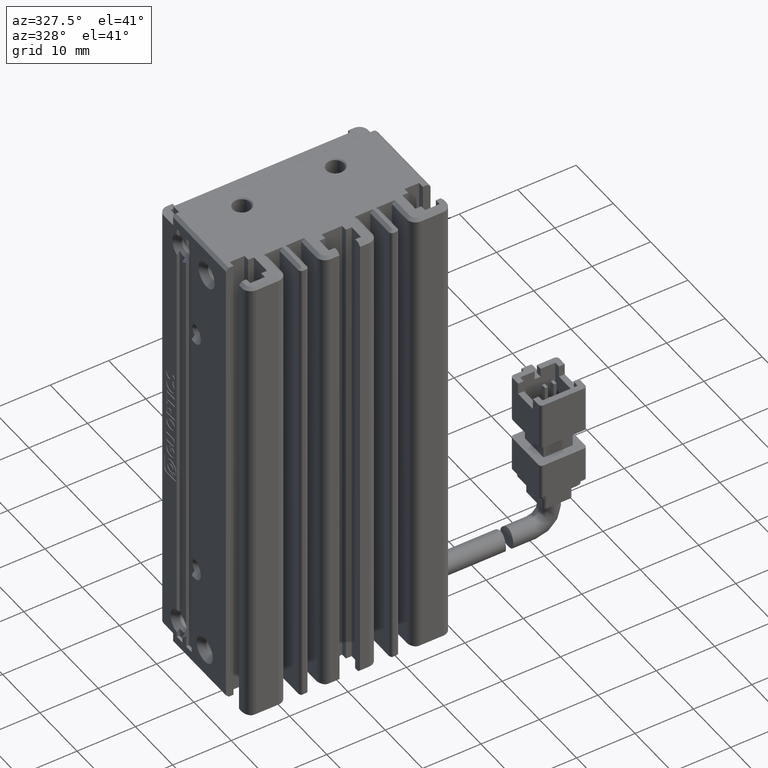
[diagram: clean part render]
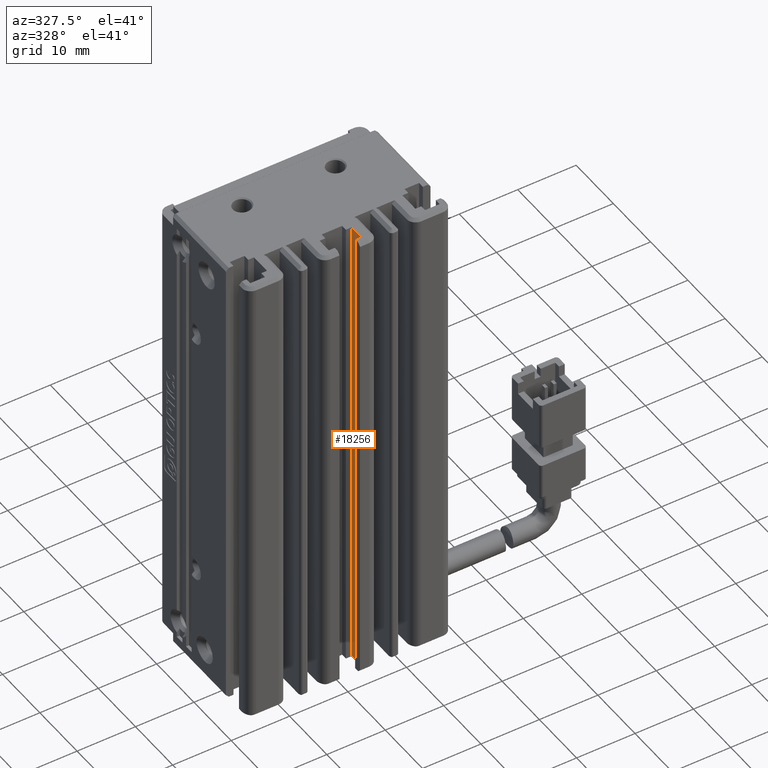
[diagram: same view with one face highlighted and labeled with its STEP entity id]
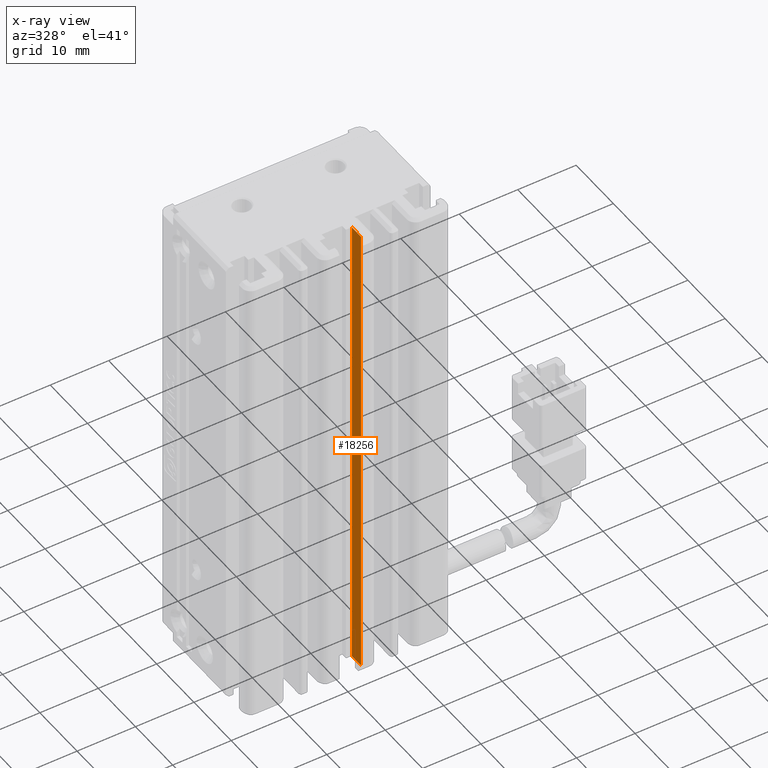
[diagram: x-ray of the same camera — body ghosted, the highlighted face saturated]
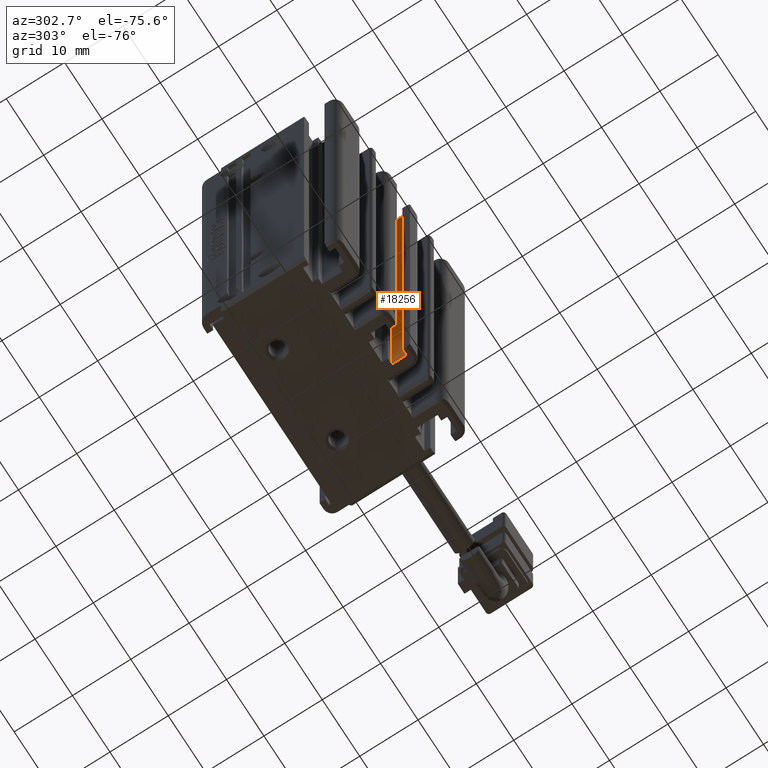
[diagram: same view with one face highlighted and labeled with its STEP entity id]
A machine part, auxiliary view. The second image highlights one B-rep face of the part: STEP entity #18256.
The next image is the same camera in x-ray: the body ghosted, the highlighted face saturated — about 0% of this face is hidden behind the body in this view.
A second angle (auxiliary view) of the same face is appended — the face is thin or edge-on in the first view.
In plain terms, the highlighted planar face has unit normal (-1, 0, 0).
Its self-contained STEP definition (entity closure, byte-faithful):
#388 = ORIENTED_EDGE ( 'NONE', *, *, #30338, .T. ) ;
#711 = EDGE_CURVE ( 'NONE', #32231, #16878, #1907, .T. ) ;
#1571 = VECTOR ( 'NONE', #5401, 1000.000000000000000 ) ;
#1907 = LINE ( 'NONE', #15274, #17039 ) ;
#3527 = DIRECTION ( 'NONE',  ( 0.0000000000000000000, 0.0000000000000000000, 1.000000000000000000 ) ) ;
#4177 = ORIENTED_EDGE ( 'NONE', *, *, #7888, .T. ) ;
#4225 = CARTESIAN_POINT ( 'NONE',  ( 43.67537974683542500, 14.79073232304837000, -74.00000000000001400 ) ) ;
#4393 = CARTESIAN_POINT ( 'NONE',  ( 43.67537974683542500, 7.083797468354437600, -156.0000000000000000 ) ) ;
#4955 = EDGE_LOOP ( 'NONE', ( #18598, #4177, #388, #22353 ) ) ;
#5401 = DIRECTION ( 'NONE',  ( -0.0000000000000000000, -1.000000000000000000, 0.0000000000000000000 ) ) ;
#7640 = DIRECTION ( 'NONE',  ( -0.0000000000000000000, -1.000000000000000000, 0.0000000000000000000 ) ) ;
#7888 = EDGE_CURVE ( 'NONE', #12111, #29545, #17174, .T. ) ;
#7990 = DIRECTION ( 'NONE',  ( 0.0000000000000000000, 0.0000000000000000000, 1.000000000000000000 ) ) ;
#8122 = CARTESIAN_POINT ( 'NONE',  ( 43.67537974683542500, 7.083797468354437600, -74.00000000000001400 ) ) ;
#11095 = DIRECTION ( 'NONE',  ( -1.000000000000000000, 0.0000000000000000000, 0.0000000000000000000 ) ) ;
#11178 = EDGE_CURVE ( 'NONE', #12111, #16878, #19083, .T. ) ;
#12111 = VERTEX_POINT ( 'NONE', #23517 ) ;
#14953 = VECTOR ( 'NONE', #7640, 1000.000000000000000 ) ;
#15274 = CARTESIAN_POINT ( 'NONE',  ( 43.67537974683542500, 12.29073232304837200, -74.00000000000001400 ) ) ;
#16847 = CARTESIAN_POINT ( 'NONE',  ( 43.67537974683542500, 7.083797468354437600, -74.00000000000001400 ) ) ;
#16878 = VERTEX_POINT ( 'NONE', #26281 ) ;
#17039 = VECTOR ( 'NONE', #3527, 1000.000000000000000 ) ;
#17174 = LINE ( 'NONE', #4225, #30973 ) ;
#18256 = ADVANCED_FACE ( 'NONE', ( #29324 ), #25543, .T. ) ;
#18598 = ORIENTED_EDGE ( 'NONE', *, *, #11178, .F. ) ;
#18915 = DIRECTION ( 'NONE',  ( -0.0000000000000000000, -0.0000000000000000000, -1.000000000000000000 ) ) ;
#19083 = LINE ( 'NONE', #16847, #14953 ) ;
#22353 = ORIENTED_EDGE ( 'NONE', *, *, #711, .T. ) ;
#23517 = CARTESIAN_POINT ( 'NONE',  ( 43.67537974683542500, 14.79073232304837000, -74.00000000000001400 ) ) ;
#23904 = CARTESIAN_POINT ( 'NONE',  ( 43.67537974683542500, 14.79073232304837000, -156.0000000000000000 ) ) ;
#24794 = AXIS2_PLACEMENT_3D ( 'NONE', #8122, #11095, #7990 ) ;
#25543 = PLANE ( 'NONE',  #24794 ) ;
#26281 = CARTESIAN_POINT ( 'NONE',  ( 43.67537974683542500, 12.29073232304837200, -74.00000000000001400 ) ) ;
#29324 = FACE_OUTER_BOUND ( 'NONE', #4955, .T. ) ;
#29545 = VERTEX_POINT ( 'NONE', #23904 ) ;
#30338 = EDGE_CURVE ( 'NONE', #29545, #32231, #36476, .T. ) ;
#30973 = VECTOR ( 'NONE', #18915, 1000.000000000000000 ) ;
#32231 = VERTEX_POINT ( 'NONE', #32259 ) ;
#32259 = CARTESIAN_POINT ( 'NONE',  ( 43.67537974683542500, 12.29073232304837200, -156.0000000000000000 ) ) ;
#36476 = LINE ( 'NONE', #4393, #1571 ) ;